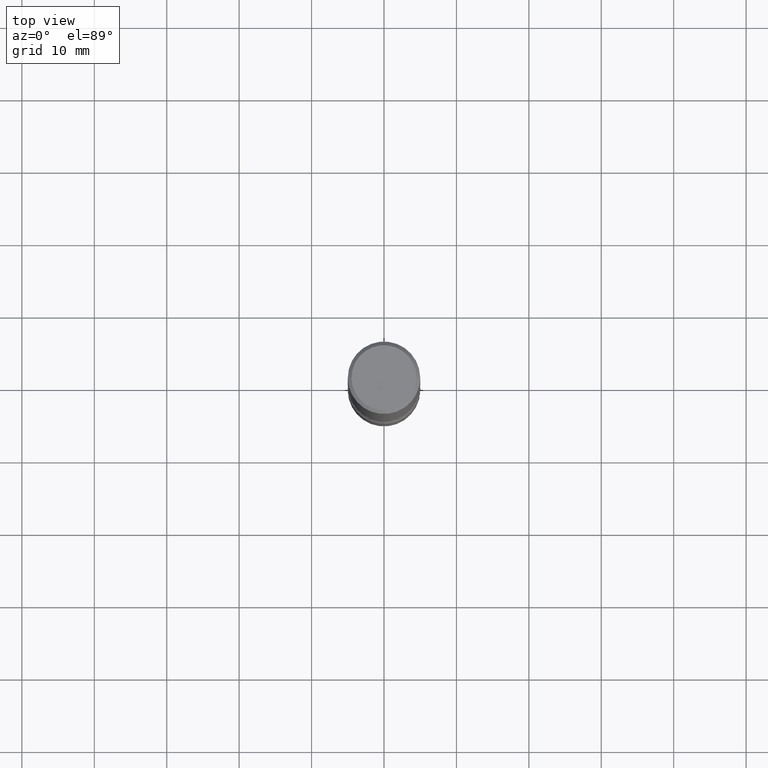
[diagram: clean part render]
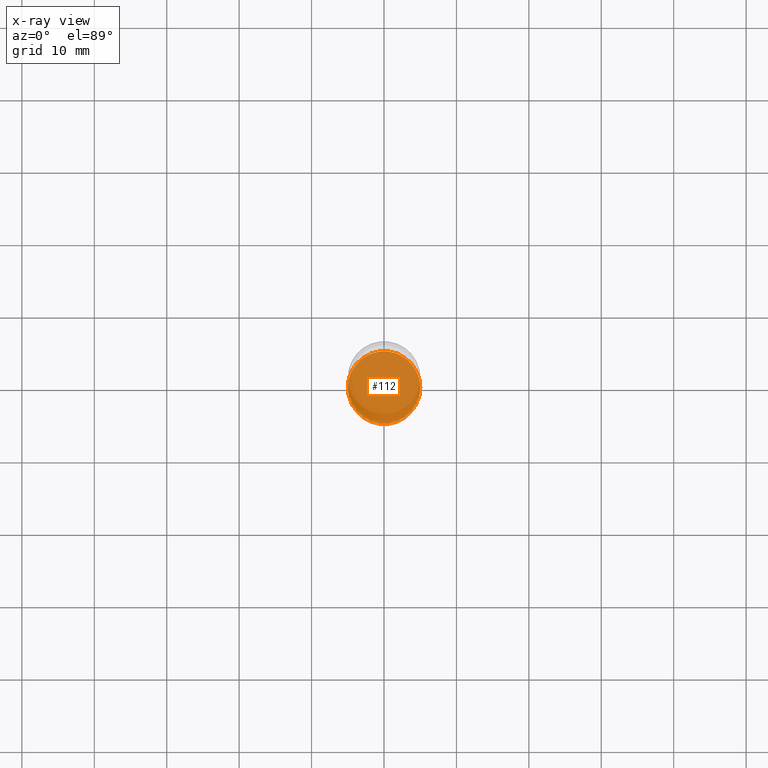
[diagram: x-ray — body ghosted, one internal face saturated and labeled with its STEP entity id]
A machine part, top view, then the same camera in x-ray: the body is ghosted and one INTERNAL B-rep face — a face not visible from any outside direction — is saturated and labeled: STEP entity #112.
In plain terms, the highlighted planar face has unit normal (0, -0, -1).
Its self-contained STEP definition (entity closure, byte-faithful):
#14 = CIRCLE ( 'NONE', #497, 0.1968500000000001915 ) ;
#21 = CARTESIAN_POINT ( 'NONE',  ( -0.1968500000000001915, -1.076649047952047064E-14, -3.070900000000000407 ) ) ;
#64 = DIRECTION ( 'NONE',  ( 1.000000000000000000, -6.982962677686272233E-15, 0.000000000000000000 ) ) ;
#70 = AXIS2_PLACEMENT_3D ( 'NONE', #322, #196, #197 ) ;
#72 = PLANE ( 'NONE',  #70 ) ;
#77 = VERTEX_POINT ( 'NONE', #21 ) ;
#111 = DIRECTION ( 'NONE',  ( -2.445468806185136597E-29, 3.491481338843145583E-15, 1.000000000000000000 ) ) ;
#112 = ADVANCED_FACE ( 'NONE', ( #407 ), #72, .F. ) ;
#141 = EDGE_CURVE ( 'NONE', #77, #181, #14, .T. ) ;
#164 = ORIENTED_EDGE ( 'NONE', *, *, #141, .T. ) ;
#181 = VERTEX_POINT ( 'NONE', #200 ) ;
#196 = DIRECTION ( 'NONE',  ( 2.438088387897960049E-29, -3.491481338843145188E-15, -1.000000000000000000 ) ) ;
#197 = DIRECTION ( 'NONE',  ( -1.000000000000000000, 6.982962677686265922E-15, -4.876176775795935793E-29 ) ) ;
#200 = CARTESIAN_POINT ( 'NONE',  ( 0.1968500000000001915, -1.209658624655596058E-14, -3.070900000000000407 ) ) ;
#213 = EDGE_LOOP ( 'NONE', ( #260, #164 ) ) ;
#219 = EDGE_CURVE ( 'NONE', #181, #77, #402, .T. ) ;
#260 = ORIENTED_EDGE ( 'NONE', *, *, #219, .T. ) ;
#281 = AXIS2_PLACEMENT_3D ( 'NONE', #465, #411, #381 ) ;
#322 = CARTESIAN_POINT ( 'NONE',  ( 7.509790156913936305E-29, -1.072199004345341739E-14, -3.070900000000000407 ) ) ;
#381 = DIRECTION ( 'NONE',  ( 1.000000000000000000, -6.982962677686272233E-15, 0.000000000000000000 ) ) ;
#402 = CIRCLE ( 'NONE', #281, 0.1968500000000001915 ) ;
#407 = FACE_OUTER_BOUND ( 'NONE', #213, .T. ) ;
#411 = DIRECTION ( 'NONE',  ( -2.445468806185136597E-29, 3.491481338843145583E-15, 1.000000000000000000 ) ) ;
#465 = CARTESIAN_POINT ( 'NONE',  ( 7.509790156913936305E-29, -1.072199004345341739E-14, -3.070900000000000407 ) ) ;
#497 = AXIS2_PLACEMENT_3D ( 'NONE', #530, #111, #64 ) ;
#530 = CARTESIAN_POINT ( 'NONE',  ( 7.509790156913936305E-29, -1.072199004345341739E-14, -3.070900000000000407 ) ) ;